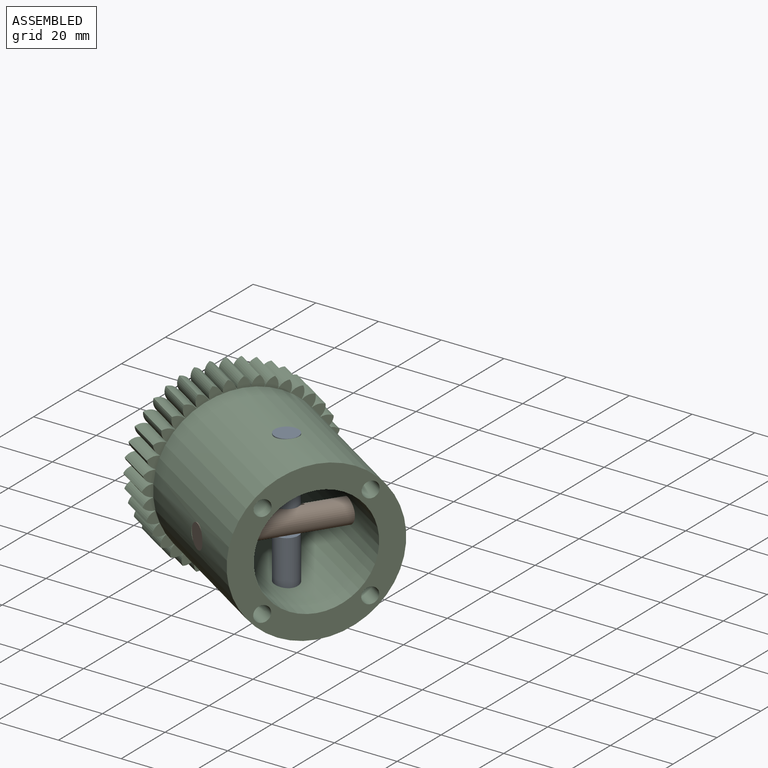
[diagram: assembled view]
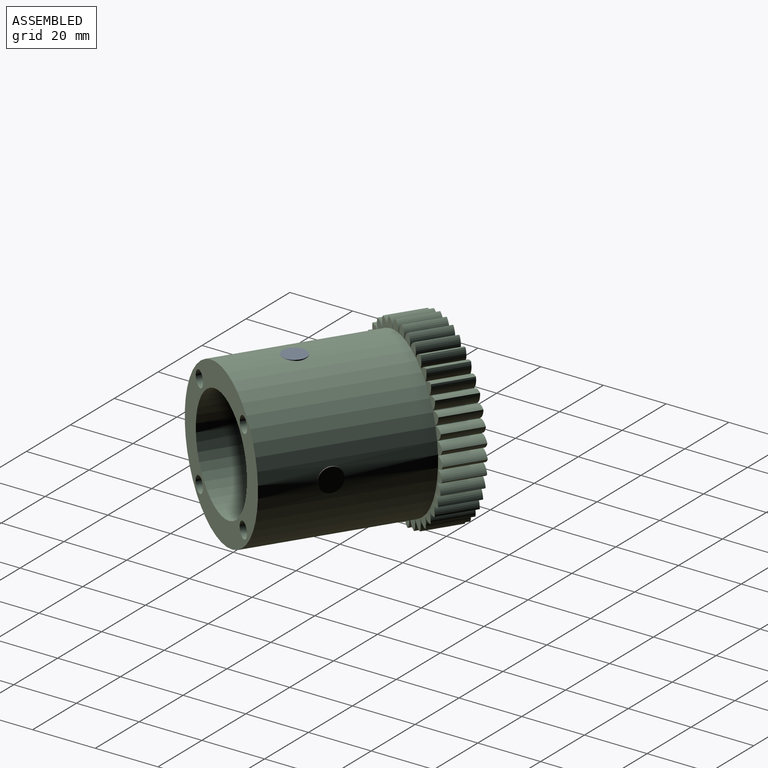
[diagram: assembled view, second angle]
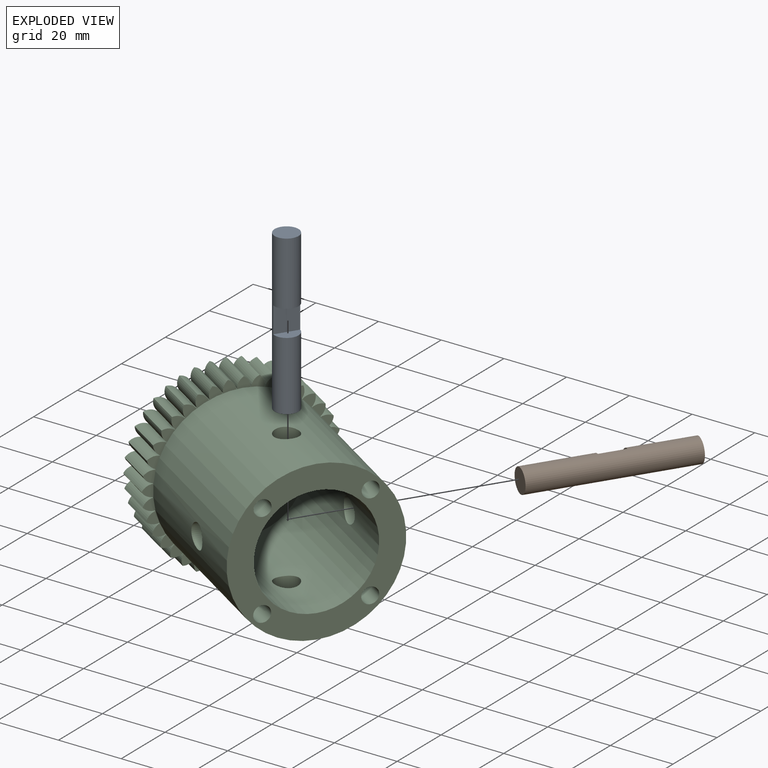
[diagram: exploded view]
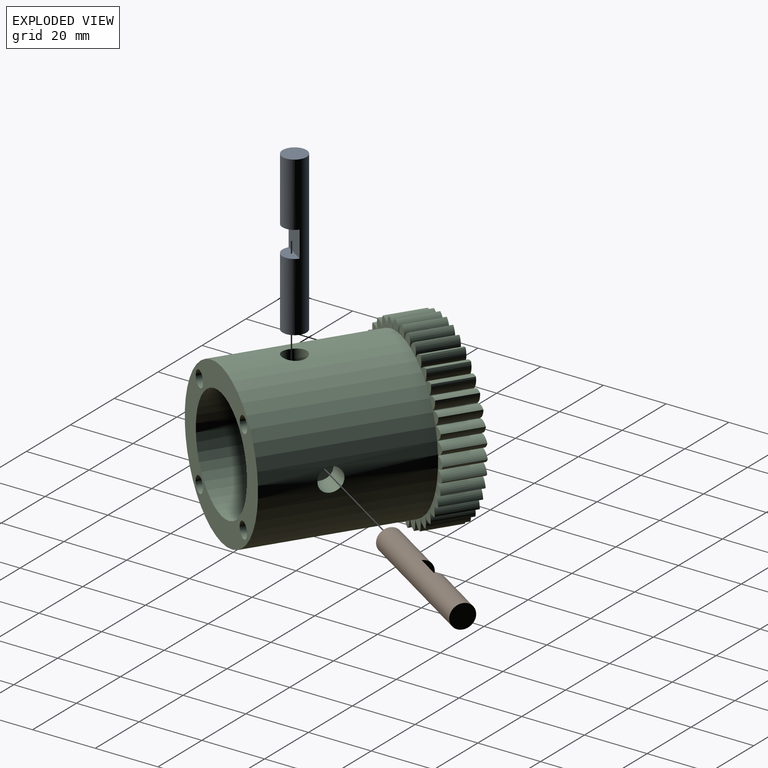
[diagram: exploded view, second angle]
ASSEMBLY  parts=3 mates=2
PART A: 6 faces, bbox 50.6x7.6x7.6 mm
  f0: cylinder r=3.81mm len=50.61mm, axis (-1,0,0), area 1113.2mm2, adj f1,f2,f3,f4,f5
  f1: plane 7.62x7.62mm, normal (1,0,0), area 45.6mm2, adj f0
  f2: plane 7.62x7.62mm, normal (-1,0,0), area 45.6mm2, adj f0
  f3: plane 7.62x3.71mm, normal (1,0,0), area 22mm2, adj f0,f5
  f4: plane 7.62x3.71mm, normal (-1,0,0), area 22mm2, adj f0,f5
  f5: plane 8.37x7.62mm, normal (0,0,-1), area 63.8mm2, adj f0,f3,f4
PART B: same geometry as A
PART C: 138 faces, bbox 57.3x63.5x57.3 mm
  f0: cylinder r=17.71mm len=50.8mm, axis (0,1,0), area 5468.2mm2, adj f129,f130,f134,f135,f136,f137
  f1: cylinder r=25.35mm len=50.8mm, axis (0,1,0), area 7907.5mm2, adj f42,f129,f134,f135,f136,f137
  f2: cylinder r=25.4mm len=12.7mm, axis (0,1,0), area 2.2mm2, adj f42,f43,f44,f123
  f3: cylinder r=25.4mm len=12.7mm, axis (0,1,0), area 2.2mm2, adj f42,f43,f121,f122
  f4: cylinder r=25.4mm len=12.7mm, axis (0,1,0), area 2.2mm2, adj f42,f43,f119,f120
  f5: cylinder r=25.4mm len=12.7mm, axis (0,1,0), area 2.2mm2, adj f42,f43,f117,f118
  f6: cylinder r=25.4mm len=12.7mm, axis (0,1,0), area 2.2mm2, adj f42,f43,f115,f116
  f7: cylinder r=25.4mm len=12.7mm, axis (0,1,0), area 2.2mm2, adj f42,f43,f113,f114
  f8: cylinder r=25.4mm len=12.7mm, axis (0,1,0), area 2.2mm2, adj f42,f43,f111,f112
  f9: cylinder r=25.4mm len=12.7mm, axis (0,1,0), area 2.2mm2, adj f42,f43,f109,f110
  f10: cylinder r=25.4mm len=12.7mm, axis (0,1,0), area 2.2mm2, adj f42,f43,f107,f108
  f11: cylinder r=25.4mm len=12.7mm, axis (0,1,0), area 2.2mm2, adj f42,f43,f105,f106
  f12: cylinder r=25.4mm len=12.7mm, axis (0,1,0), area 2.2mm2, adj f42,f43,f103,f104
  f13: cylinder r=25.4mm len=12.7mm, axis (0,1,0), area 2.2mm2, adj f42,f43,f101,f102
  f14: cylinder r=25.4mm len=12.7mm, axis (0,1,0), area 2.2mm2, adj f42,f43,f99,f100
  f15: cylinder r=25.4mm len=12.7mm, axis (0,1,0), area 2.2mm2, adj f42,f43,f97,f98
  f16: cylinder r=25.4mm len=12.7mm, axis (0,1,0), area 2.2mm2, adj f42,f43,f95,f96
  f17: cylinder r=25.4mm len=12.7mm, axis (0,1,0), area 2.2mm2, adj f42,f43,f93,f94
  f18: cylinder r=25.4mm len=12.7mm, axis (0,1,0), area 2.2mm2, adj f42,f43,f91,f92
  f19: cylinder r=25.4mm len=12.7mm, axis (0,1,0), area 2.2mm2, adj f42,f43,f89,f90
  f20: cylinder r=25.4mm len=12.7mm, axis (0,1,0), area 2.2mm2, adj f42,f43,f87,f88
  f21: cylinder r=25.4mm len=12.7mm, axis (0,1,0), area 2.2mm2, adj f42,f43,f85,f86
  f22: cylinder r=25.4mm len=12.7mm, axis (0,1,0), area 2.2mm2, adj f42,f43,f83,f84
  f23: cylinder r=25.4mm len=12.7mm, axis (0,1,0), area 2.2mm2, adj f42,f43,f81,f82
  f24: cylinder r=25.4mm len=12.7mm, axis (0,1,0), area 2.2mm2, adj f42,f43,f79,f80
  f25: cylinder r=25.4mm len=12.7mm, axis (0,1,0), area 2.2mm2, adj f42,f43,f77,f78
  f26: cylinder r=25.4mm len=12.7mm, axis (0,1,0), area 2.2mm2, adj f42,f43,f75,f76
  f27: cylinder r=25.4mm len=12.7mm, axis (0,1,0), area 2.2mm2, adj f42,f43,f73,f74
  f28: cylinder r=25.4mm len=12.7mm, axis (0,1,0), area 2.2mm2, adj f42,f43,f71,f72
  f29: cylinder r=25.4mm len=12.7mm, axis (0,1,0), area 2.2mm2, adj f42,f43,f69,f70
  f30: cylinder r=25.4mm len=12.7mm, axis (0,1,0), area 2.2mm2, adj f42,f43,f67,f68
  f31: cylinder r=25.4mm len=12.7mm, axis (0,1,0), area 2.2mm2, adj f42,f43,f65,f66
  f32: cylinder r=25.4mm len=12.7mm, axis (0,1,0), area 2.2mm2, adj f42,f43,f63,f64
  f33: cylinder r=25.4mm len=12.7mm, axis (0,1,0), area 2.2mm2, adj f42,f43,f61,f62
  f34: cylinder r=25.4mm len=12.7mm, axis (0,1,0), area 2.2mm2, adj f42,f43,f59,f60
  f35: cylinder r=25.4mm len=12.7mm, axis (0,1,0), area 2.2mm2, adj f42,f43,f57,f58
  f36: cylinder r=25.4mm len=12.7mm, axis (0,1,0), area 2.2mm2, adj f42,f43,f55,f56
  f37: cylinder r=25.4mm len=12.7mm, axis (0,1,0), area 2.2mm2, adj f42,f43,f53,f54
  f38: cylinder r=25.4mm len=12.7mm, axis (0,1,0), area 2.2mm2, adj f42,f43,f51,f52
  f39: cylinder r=25.4mm len=12.7mm, axis (0,1,0), area 2.2mm2, adj f42,f43,f49,f50
  f40: cylinder r=25.4mm len=12.7mm, axis (0,1,0), area 2.2mm2, adj f42,f43,f47,f48
  f41: cylinder r=25.4mm len=12.7mm, axis (0,1,0), area 2.2mm2, adj f42,f43,f45,f46
  f42: plane 57.25x57.25mm, normal (0,-1,0), area 357.6mm2, adj f1,f2,f3,f4,f5,f6,f7,f8
  f43: plane 57.25x57.25mm, normal (0,1,0), area 2046.8mm2, adj f2,f3,f4,f5,f6,f7,f8,f9
  f44: cylinder r=3.81mm len=12.7mm, axis (0,-1,0), area 50.7mm2, adj f2,f42,f43,f45
  f45: cylinder r=3.81mm len=12.7mm, axis (0,-1,0), area 50.7mm2, adj f41,f42,f43,f44
  f46: cylinder r=3.81mm len=12.7mm, axis (0,-1,0), area 50.7mm2, adj f41,f42,f43,f47
  f47: cylinder r=3.81mm len=12.7mm, axis (0,-1,0), area 50.7mm2, adj f40,f42,f43,f46
  f48: cylinder r=3.81mm len=12.7mm, axis (0,-1,0), area 50.7mm2, adj f40,f42,f43,f49
  f49: cylinder r=3.81mm len=12.7mm, axis (0,-1,0), area 50.7mm2, adj f39,f42,f43,f48
  f50: cylinder r=3.81mm len=12.7mm, axis (0,-1,0), area 50.7mm2, adj f39,f42,f43,f51
  f51: cylinder r=3.81mm len=12.7mm, axis (0,-1,0), area 50.7mm2, adj f38,f42,f43,f50
  f52: cylinder r=3.81mm len=12.7mm, axis (0,-1,0), area 50.7mm2, adj f38,f42,f43,f53
  f53: cylinder r=3.81mm len=12.7mm, axis (0,-1,0), area 50.7mm2, adj f37,f42,f43,f52
  f54: cylinder r=3.81mm len=12.7mm, axis (0,-1,0), area 50.7mm2, adj f37,f42,f43,f55
  f55: cylinder r=3.81mm len=12.7mm, axis (0,-1,0), area 50.7mm2, adj f36,f42,f43,f54
  f56: cylinder r=3.81mm len=12.7mm, axis (0,-1,0), area 50.7mm2, adj f36,f42,f43,f57
  f57: cylinder r=3.81mm len=12.7mm, axis (0,-1,0), area 50.7mm2, adj f35,f42,f43,f56
  f58: cylinder r=3.81mm len=12.7mm, axis (0,-1,0), area 50.7mm2, adj f35,f42,f43,f59
  f59: cylinder r=3.81mm len=12.7mm, axis (0,-1,0), area 50.7mm2, adj f34,f42,f43,f58
  f60: cylinder r=3.81mm len=12.7mm, axis (0,-1,0), area 50.7mm2, adj f34,f42,f43,f61
  f61: cylinder r=3.81mm len=12.7mm, axis (0,-1,0), area 50.7mm2, adj f33,f42,f43,f60
  f62: cylinder r=3.81mm len=12.7mm, axis (0,-1,0), area 50.7mm2, adj f33,f42,f43,f63
  f63: cylinder r=3.81mm len=12.7mm, axis (0,-1,0), area 50.7mm2, adj f32,f42,f43,f62
  f64: cylinder r=3.81mm len=12.7mm, axis (0,-1,0), area 50.7mm2, adj f32,f42,f43,f65
  f65: cylinder r=3.81mm len=12.7mm, axis (0,-1,0), area 50.7mm2, adj f31,f42,f43,f64
  f66: cylinder r=3.81mm len=12.7mm, axis (0,-1,0), area 50.7mm2, adj f31,f42,f43,f67
  f67: cylinder r=3.81mm len=12.7mm, axis (0,-1,0), area 50.7mm2, adj f30,f42,f43,f66
  f68: cylinder r=3.81mm len=12.7mm, axis (0,-1,0), area 50.7mm2, adj f30,f42,f43,f69
  f69: cylinder r=3.81mm len=12.7mm, axis (0,-1,0), area 50.7mm2, adj f29,f42,f43,f68
  f70: cylinder r=3.81mm len=12.7mm, axis (0,-1,0), area 50.7mm2, adj f29,f42,f43,f71
  f71: cylinder r=3.81mm len=12.7mm, axis (0,-1,0), area 50.7mm2, adj f28,f42,f43,f70
  f72: cylinder r=3.81mm len=12.7mm, axis (0,-1,0), area 50.7mm2, adj f28,f42,f43,f73
  f73: cylinder r=3.81mm len=12.7mm, axis (0,-1,0), area 50.7mm2, adj f27,f42,f43,f72
  f74: cylinder r=3.81mm len=12.7mm, axis (0,-1,0), area 50.7mm2, adj f27,f42,f43,f75
  f75: cylinder r=3.81mm len=12.7mm, axis (0,-1,0), area 50.7mm2, adj f26,f42,f43,f74
  f76: cylinder r=3.81mm len=12.7mm, axis (0,-1,0), area 50.7mm2, adj f26,f42,f43,f77
  f77: cylinder r=3.81mm len=12.7mm, axis (0,-1,0), area 50.7mm2, adj f25,f42,f43,f76
  f78: cylinder r=3.81mm len=12.7mm, axis (0,-1,0), area 50.7mm2, adj f25,f42,f43,f79
  f79: cylinder r=3.81mm len=12.7mm, axis (0,-1,0), area 50.7mm2, adj f24,f42,f43,f78
  f80: cylinder r=3.81mm len=12.7mm, axis (0,-1,0), area 50.7mm2, adj f24,f42,f43,f81
  f81: cylinder r=3.81mm len=12.7mm, axis (0,-1,0), area 50.7mm2, adj f23,f42,f43,f80
  f82: cylinder r=3.81mm len=12.7mm, axis (0,-1,0), area 50.7mm2, adj f23,f42,f43,f83
  f83: cylinder r=3.81mm len=12.7mm, axis (0,-1,0), area 50.7mm2, adj f22,f42,f43,f82
  f84: cylinder r=3.81mm len=12.7mm, axis (0,-1,0), area 50.7mm2, adj f22,f42,f43,f85
  f85: cylinder r=3.81mm len=12.7mm, axis (0,-1,0), area 50.7mm2, adj f21,f42,f43,f84
  f86: cylinder r=3.81mm len=12.7mm, axis (0,-1,0), area 50.7mm2, adj f21,f42,f43,f87
  f87: cylinder r=3.81mm len=12.7mm, axis (0,-1,0), area 50.7mm2, adj f20,f42,f43,f86
  f88: cylinder r=3.81mm len=12.7mm, axis (0,-1,0), area 50.7mm2, adj f20,f42,f43,f89
  f89: cylinder r=3.81mm len=12.7mm, axis (0,-1,0), area 50.7mm2, adj f19,f42,f43,f88
  f90: cylinder r=3.81mm len=12.7mm, axis (0,-1,0), area 50.7mm2, adj f19,f42,f43,f91
  f91: cylinder r=3.81mm len=12.7mm, axis (0,-1,0), area 50.7mm2, adj f18,f42,f43,f90
  f92: cylinder r=3.81mm len=12.7mm, axis (0,-1,0), area 50.7mm2, adj f18,f42,f43,f93
  f93: cylinder r=3.81mm len=12.7mm, axis (0,-1,0), area 50.7mm2, adj f17,f42,f43,f92
  f94: cylinder r=3.81mm len=12.7mm, axis (0,-1,0), area 50.7mm2, adj f17,f42,f43,f95
  f95: cylinder r=3.81mm len=12.7mm, axis (0,-1,0), area 50.7mm2, adj f16,f42,f43,f94
  f96: cylinder r=3.81mm len=12.7mm, axis (0,-1,0), area 50.7mm2, adj f16,f42,f43,f97
  f97: cylinder r=3.81mm len=12.7mm, axis (0,-1,0), area 50.7mm2, adj f15,f42,f43,f96
  f98: cylinder r=3.81mm len=12.7mm, axis (0,-1,0), area 50.7mm2, adj f15,f42,f43,f99
  f99: cylinder r=3.81mm len=12.7mm, axis (0,-1,0), area 50.7mm2, adj f14,f42,f43,f98
  f100: cylinder r=3.81mm len=12.7mm, axis (0,-1,0), area 50.7mm2, adj f14,f42,f43,f101
  f101: cylinder r=3.81mm len=12.7mm, axis (0,-1,0), area 50.7mm2, adj f13,f42,f43,f100
  f102: cylinder r=3.81mm len=12.7mm, axis (0,-1,0), area 50.7mm2, adj f13,f42,f43,f103
  f103: cylinder r=3.81mm len=12.7mm, axis (0,-1,0), area 50.7mm2, adj f12,f42,f43,f102
  f104: cylinder r=3.81mm len=12.7mm, axis (0,-1,0), area 50.7mm2, adj f12,f42,f43,f105
  f105: cylinder r=3.81mm len=12.7mm, axis (0,-1,0), area 50.7mm2, adj f11,f42,f43,f104
  f106: cylinder r=3.81mm len=12.7mm, axis (0,-1,0), area 50.7mm2, adj f11,f42,f43,f107
  f107: cylinder r=3.81mm len=12.7mm, axis (0,-1,0), area 50.7mm2, adj f10,f42,f43,f106
  f108: cylinder r=3.81mm len=12.7mm, axis (0,-1,0), area 50.7mm2, adj f10,f42,f43,f109
  f109: cylinder r=3.81mm len=12.7mm, axis (0,-1,0), area 50.7mm2, adj f9,f42,f43,f108
  f110: cylinder r=3.81mm len=12.7mm, axis (0,-1,0), area 50.7mm2, adj f9,f42,f43,f111
  f111: cylinder r=3.81mm len=12.7mm, axis (0,-1,0), area 50.7mm2, adj f8,f42,f43,f110
  f112: cylinder r=3.81mm len=12.7mm, axis (0,-1,0), area 50.7mm2, adj f8,f42,f43,f113
  f113: cylinder r=3.81mm len=12.7mm, axis (0,-1,0), area 50.7mm2, adj f7,f42,f43,f112
  f114: cylinder r=3.81mm len=12.7mm, axis (0,-1,0), area 50.7mm2, adj f7,f42,f43,f115
  f115: cylinder r=3.81mm len=12.7mm, axis (0,-1,0), area 50.7mm2, adj f6,f42,f43,f114
  f116: cylinder r=3.81mm len=12.7mm, axis (0,-1,0), area 50.7mm2, adj f6,f42,f43,f117
  f117: cylinder r=3.81mm len=12.7mm, axis (0,-1,0), area 50.7mm2, adj f5,f42,f43,f116
  f118: cylinder r=3.81mm len=12.7mm, axis (0,-1,0), area 50.7mm2, adj f5,f42,f43,f119
  f119: cylinder r=3.81mm len=12.7mm, axis (0,-1,0), area 50.7mm2, adj f4,f42,f43,f118
  f120: cylinder r=3.81mm len=12.7mm, axis (0,-1,0), area 50.7mm2, adj f4,f42,f43,f121
  f121: cylinder r=3.81mm len=12.7mm, axis (0,-1,0), area 50.7mm2, adj f3,f42,f43,f120
  f122: cylinder r=3.81mm len=12.7mm, axis (0,-1,0), area 50.7mm2, adj f3,f42,f43,f123
  f123: cylinder r=3.81mm len=12.7mm, axis (0,-1,0), area 50.7mm2, adj f2,f42,f43,f122
  f124: cylinder r=2.54mm len=63.5mm, axis (0,-1,0), area 1013.4mm2, adj f43,f129
  f125: cylinder r=2.54mm len=63.5mm, axis (0,-1,0), area 1013.4mm2, adj f43,f129
  f126: plane 63.5x0.5mm, normal (0,0,1), area 31.9mm2, adj f43,f127,f129
  f127: cylinder r=2.54mm len=63.5mm, axis (0,-1,0), area 981.4mm2, adj f43,f126,f129
  f128: cylinder r=2.54mm len=63.5mm, axis (0,-1,0), area 1013.4mm2, adj f43,f129
  f129: plane 50.7x50.7mm, normal (0,-1,0), area 952.4mm2, adj f0,f1,f124,f125,f126,f127,f128
  f130: plane 35.42x35.42mm, normal (0,-1,0), area 736.8mm2, adj f0,f132
  f131: cylinder r=6.35mm len=12.7mm, axis (0,1,0), area 304mm2, adj f132,f133
  f132: torus R=8.89mm, axis (0,-1,0), area 182.3mm2, adj f130,f131
  f133: torus R=8.89mm, axis (0,-1,0), area 182.3mm2, adj f43,f131
  f134: cylinder r=3.81mm len=8.06mm, axis (0,0,-1), area 184.4mm2, adj f0,f1
  f135: cylinder r=3.81mm len=8.06mm, axis (0,0,-1), area 184.4mm2, adj f0,f1
  f136: cylinder r=3.81mm len=8.06mm, axis (-1,0,0), area 184.4mm2, adj f0,f1
  f137: cylinder r=3.81mm len=8.06mm, axis (-1,0,0), area 184.4mm2, adj f0,f1
PLACE A rot(axis=(-0.69,0.2,0.69),157deg) t=(-119.62,-37.29,55.32)mm
PLACE B rot(axis=(-0.36,0.66,-0.66),140.4deg) t=(6.61,-35.58,-14.52)mm
PLACE C rot(axis=(0,0,1),57.2deg) t=(-87.39,-5.19,29.92)mm fixed
MATE fastened C.f136 <-> B.f0  axis (-0.54,-0.84,0) through (-37.56,-7.1,29.92)mm
MATE fastened A.f0 <-> C.f134  axis (0,0,1) through (-51.37,-28.42,55.32)mm
